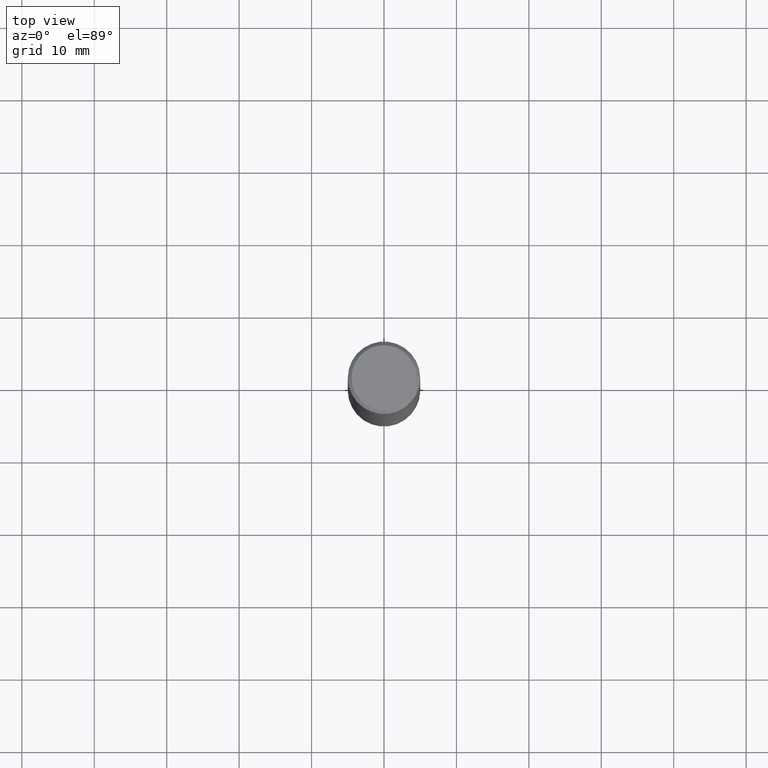
[diagram: clean part render]
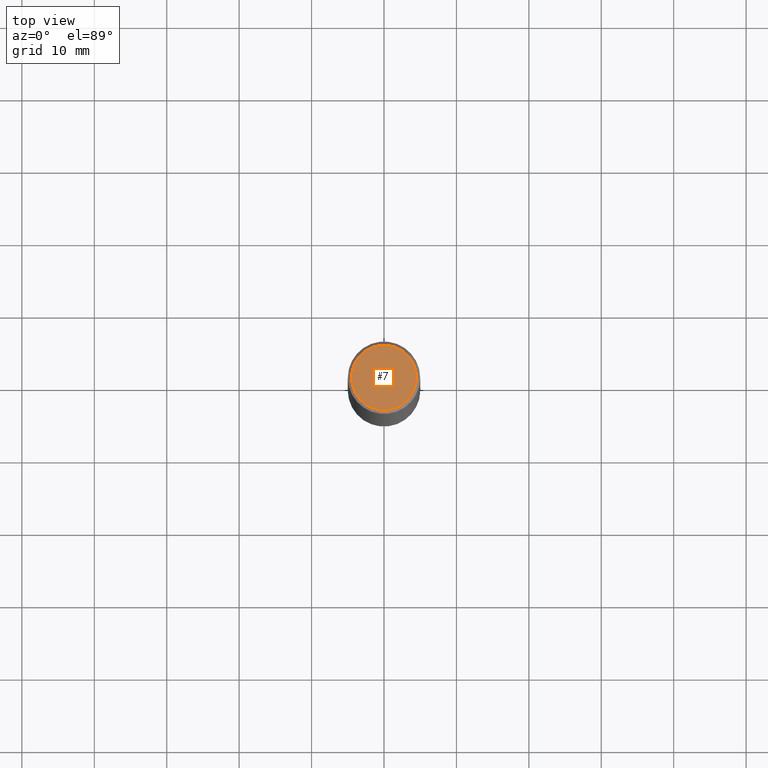
[diagram: same view with one face highlighted and labeled with its STEP entity id]
A machine part, top view. The second image highlights one B-rep face of the part: STEP entity #7.
In plain terms, the highlighted planar face has unit normal (0, -0, -1).
Its self-contained STEP definition (entity closure, byte-faithful):
#7 = ADVANCED_FACE ( 'NONE', ( #336 ), #92, .F. ) ;
#10 = CIRCLE ( 'NONE', #129, 0.1768499999999997574 ) ;
#29 = CARTESIAN_POINT ( 'NONE',  ( 1.234936949548814420E-15, 0.1768499999999997574, -6.153342185293592648E-16 ) ) ;
#59 = CARTESIAN_POINT ( 'NONE',  ( -0.1768499999999997574, 1.269851762937245478E-15, 4.268512490091652920E-18 ) ) ;
#92 = PLANE ( 'NONE',  #147 ) ;
#94 = DIRECTION ( 'NONE',  ( -2.445468806185136597E-29, 3.491481338843145583E-15, 1.000000000000000000 ) ) ;
#108 = DIRECTION ( 'NONE',  ( 1.000000000000000000, -6.982962677686266711E-15, 4.875932113059884735E-29 ) ) ;
#127 = EDGE_LOOP ( 'NONE', ( #230, #308 ) ) ;
#129 = AXIS2_PLACEMENT_3D ( 'NONE', #342, #94, #204 ) ;
#139 = VERTEX_POINT ( 'NONE', #59 ) ;
#140 = EDGE_CURVE ( 'NONE', #139, #172, #10, .T. ) ;
#147 = AXIS2_PLACEMENT_3D ( 'NONE', #29, #196, #304 ) ;
#172 = VERTEX_POINT ( 'NONE', #321 ) ;
#189 = DIRECTION ( 'NONE',  ( -2.445468806185136597E-29, 3.491481338843145583E-15, 1.000000000000000000 ) ) ;
#196 = DIRECTION ( 'NONE',  ( 2.438088387897960049E-29, -3.491481338843145188E-15, -1.000000000000000000 ) ) ;
#204 = DIRECTION ( 'NONE',  ( 1.000000000000000000, -6.982962677686266711E-15, 4.875932113059884735E-29 ) ) ;
#230 = ORIENTED_EDGE ( 'NONE', *, *, #140, .T. ) ;
#254 = EDGE_CURVE ( 'NONE', #172, #139, #319, .T. ) ;
#304 = DIRECTION ( 'NONE',  ( -1.000000000000000000, 6.982962677686265922E-15, -4.876176775795935793E-29 ) ) ;
#308 = ORIENTED_EDGE ( 'NONE', *, *, #254, .T. ) ;
#309 = AXIS2_PLACEMENT_3D ( 'NONE', #360, #189, #108 ) ;
#319 = CIRCLE ( 'NONE', #309, 0.1768499999999997574 ) ;
#321 = CARTESIAN_POINT ( 'NONE',  ( 0.1768499999999997574, -1.316798864272040366E-15, 4.268512490109333727E-18 ) ) ;
#336 = FACE_OUTER_BOUND ( 'NONE', #127, .T. ) ;
#342 = CARTESIAN_POINT ( 'NONE',  ( -1.043851414335219820E-46, 1.490343170380447200E-32, 4.268512490100411279E-18 ) ) ;
#360 = CARTESIAN_POINT ( 'NONE',  ( -1.043851414335219820E-46, 1.490343170380447200E-32, 4.268512490100411279E-18 ) ) ;